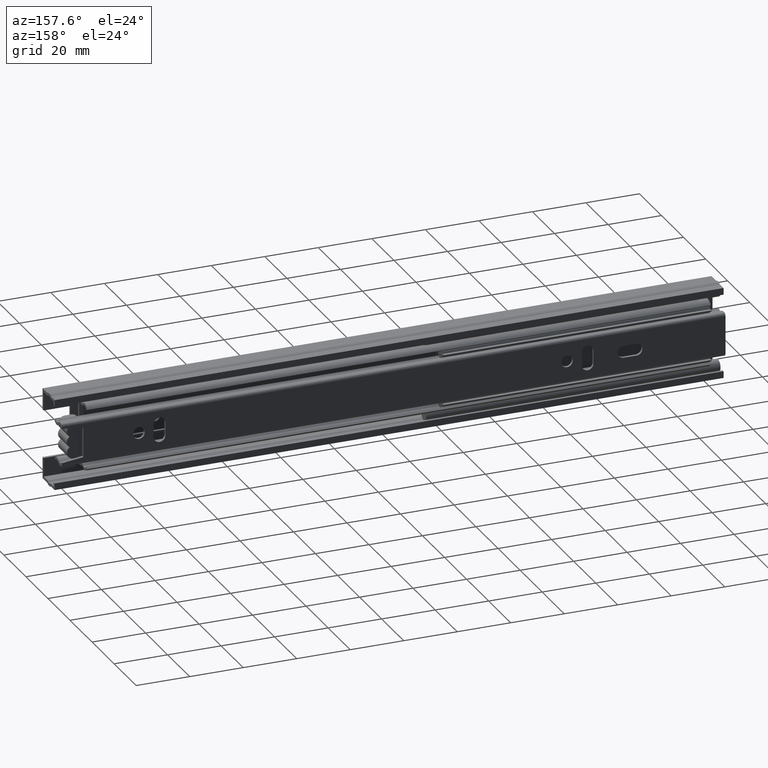
[diagram: clean part render]
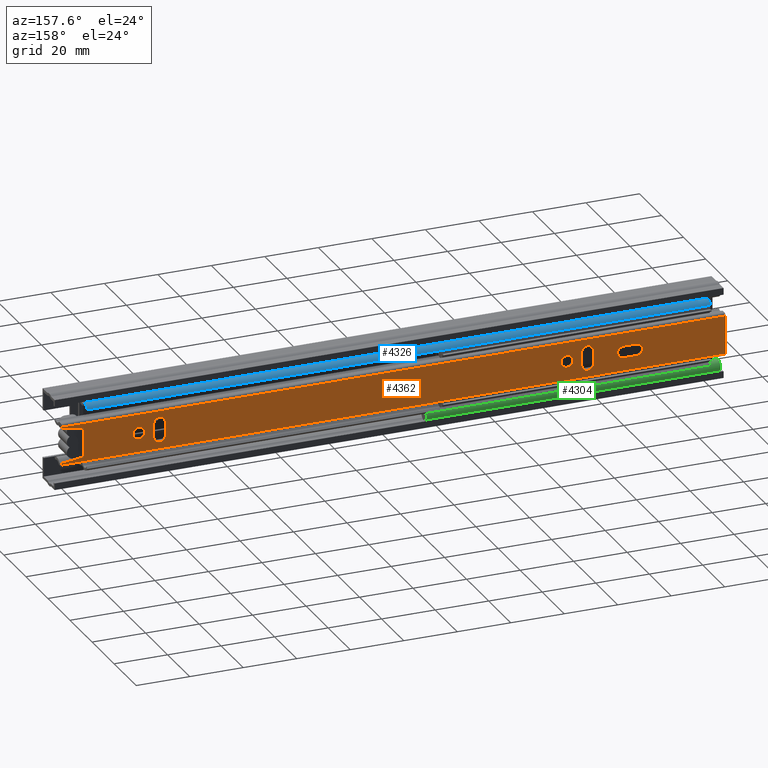
[diagram: same view with three faces highlighted in distinct colors, each labeled with its STEP entity id]
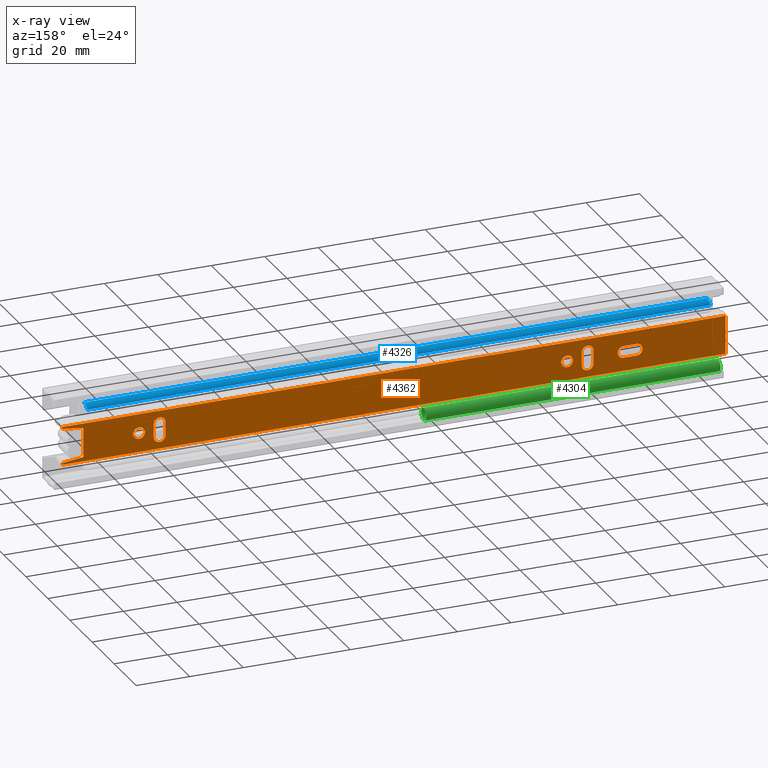
[diagram: x-ray of the same camera — body ghosted, the three highlighted faces saturated]
A machine part, auxiliary view with three faces highlighted in distinct colors.
The next image is the same camera in x-ray (body ghosted, the three faces saturated) — at least one of them is partly hidden behind the body in this view.
Their STEP definitions:

[orange] entity #4362 — the highlighted planar face has unit normal (-0, 1, -0).
#176=FACE_BOUND('',#621,.T.);
#177=FACE_BOUND('',#622,.T.);
#178=FACE_BOUND('',#623,.T.);
#179=FACE_BOUND('',#624,.T.);
#180=FACE_BOUND('',#625,.T.);
#356=FACE_OUTER_BOUND('',#620,.T.);
#620=EDGE_LOOP('',(#3748,#3749,#3750,#3751,#3752,#3753,#3754,#3755));
#621=EDGE_LOOP('',(#3756,#3757,#3758,#3759));
#622=EDGE_LOOP('',(#3760,#3761,#3762,#3763));
#623=EDGE_LOOP('',(#3764));
#624=EDGE_LOOP('',(#3765));
#625=EDGE_LOOP('',(#3766,#3767,#3768,#3769));
#997=LINE('',#6951,#1455);
#1002=LINE('',#6963,#1460);
#1014=LINE('',#7010,#1472);
#1025=LINE('',#7039,#1483);
#1032=LINE('',#7061,#1490);
#1035=LINE('',#7067,#1493);
#1038=LINE('',#7071,#1496);
#1039=LINE('',#7073,#1497);
#1040=LINE('',#7078,#1498);
#1041=LINE('',#7081,#1499);
#1042=LINE('',#7086,#1500);
#1043=LINE('',#7089,#1501);
#1044=LINE('',#7098,#1502);
#1045=LINE('',#7101,#1503);
#1455=VECTOR('',#5681,248.);
#1460=VECTOR('',#5692,14.3000000000001);
#1472=VECTOR('',#5730,248.);
#1483=VECTOR('',#5759,0.650000000000026);
#1490=VECTOR('',#5780,8.06225774829856);
#1493=VECTOR('',#5785,11.);
#1496=VECTOR('',#5790,8.06225774829856);
#1497=VECTOR('',#5793,0.650000000000024);
#1498=VECTOR('',#5796,4.89999999999999);
#1499=VECTOR('',#5799,4.89999999999999);
#1500=VECTOR('',#5802,4.9);
#1501=VECTOR('',#5805,4.9);
#1502=VECTOR('',#5812,4.9);
#1503=VECTOR('',#5815,4.9);
#1740=CIRCLE('',#4733,2.2);
#1741=CIRCLE('',#4734,2.2);
#1742=CIRCLE('',#4735,2.2);
#1743=CIRCLE('',#4736,2.2);
#1744=CIRCLE('',#4737,2.2);
#1745=CIRCLE('',#4738,2.2);
#1746=CIRCLE('',#4739,2.2);
#1747=CIRCLE('',#4740,2.2);
#2056=VERTEX_POINT('',#6948);
#2057=VERTEX_POINT('',#6950);
#2061=VERTEX_POINT('',#6962);
#2082=VERTEX_POINT('',#7006);
#2092=VERTEX_POINT('',#7037);
#2099=VERTEX_POINT('',#7058);
#2100=VERTEX_POINT('',#7060);
#2102=VERTEX_POINT('',#7066);
#2103=VERTEX_POINT('',#7074);
#2104=VERTEX_POINT('',#7075);
#2105=VERTEX_POINT('',#7077);
#2106=VERTEX_POINT('',#7079);
#2107=VERTEX_POINT('',#7082);
#2108=VERTEX_POINT('',#7083);
#2109=VERTEX_POINT('',#7085);
#2110=VERTEX_POINT('',#7087);
#2111=VERTEX_POINT('',#7090);
#2112=VERTEX_POINT('',#7092);
#2113=VERTEX_POINT('',#7094);
#2114=VERTEX_POINT('',#7095);
#2115=VERTEX_POINT('',#7097);
#2116=VERTEX_POINT('',#7099);
#2614=EDGE_CURVE('',#2056,#2057,#997,.T.);
#2620=EDGE_CURVE('',#2057,#2061,#1002,.T.);
#2644=EDGE_CURVE('',#2061,#2082,#1014,.T.);
#2659=EDGE_CURVE('',#2092,#2056,#1025,.T.);
#2669=EDGE_CURVE('',#2100,#2099,#1032,.T.);
#2672=EDGE_CURVE('',#2102,#2100,#1035,.T.);
#2675=EDGE_CURVE('',#2092,#2102,#1038,.T.);
#2676=EDGE_CURVE('',#2082,#2099,#1039,.T.);
#2677=EDGE_CURVE('',#2103,#2104,#1740,.T.);
#2678=EDGE_CURVE('',#2104,#2105,#1040,.T.);
#2679=EDGE_CURVE('',#2105,#2106,#1741,.T.);
#2680=EDGE_CURVE('',#2106,#2103,#1041,.T.);
#2681=EDGE_CURVE('',#2107,#2108,#1742,.T.);
#2682=EDGE_CURVE('',#2108,#2109,#1042,.T.);
#2683=EDGE_CURVE('',#2109,#2110,#1743,.T.);
#2684=EDGE_CURVE('',#2110,#2107,#1043,.T.);
#2685=EDGE_CURVE('',#2111,#2111,#1744,.T.);
#2686=EDGE_CURVE('',#2112,#2112,#1745,.T.);
#2687=EDGE_CURVE('',#2113,#2114,#1746,.T.);
#2688=EDGE_CURVE('',#2114,#2115,#1044,.T.);
#2689=EDGE_CURVE('',#2115,#2116,#1747,.T.);
#2690=EDGE_CURVE('',#2116,#2113,#1045,.T.);
#3748=ORIENTED_EDGE('',*,*,#2614,.F.);
#3749=ORIENTED_EDGE('',*,*,#2659,.F.);
#3750=ORIENTED_EDGE('',*,*,#2675,.T.);
#3751=ORIENTED_EDGE('',*,*,#2672,.T.);
#3752=ORIENTED_EDGE('',*,*,#2669,.T.);
#3753=ORIENTED_EDGE('',*,*,#2676,.F.);
#3754=ORIENTED_EDGE('',*,*,#2644,.F.);
#3755=ORIENTED_EDGE('',*,*,#2620,.F.);
#3756=ORIENTED_EDGE('',*,*,#2677,.T.);
#3757=ORIENTED_EDGE('',*,*,#2678,.T.);
#3758=ORIENTED_EDGE('',*,*,#2679,.T.);
#3759=ORIENTED_EDGE('',*,*,#2680,.T.);
#3760=ORIENTED_EDGE('',*,*,#2681,.T.);
#3761=ORIENTED_EDGE('',*,*,#2682,.T.);
#3762=ORIENTED_EDGE('',*,*,#2683,.T.);
#3763=ORIENTED_EDGE('',*,*,#2684,.T.);
#3764=ORIENTED_EDGE('',*,*,#2685,.T.);
#3765=ORIENTED_EDGE('',*,*,#2686,.T.);
#3766=ORIENTED_EDGE('',*,*,#2687,.T.);
#3767=ORIENTED_EDGE('',*,*,#2688,.T.);
#3768=ORIENTED_EDGE('',*,*,#2689,.T.);
#3769=ORIENTED_EDGE('',*,*,#2690,.T.);
#4156=PLANE('',#4732);
#4362=ADVANCED_FACE('',(#356,#176,#177,#178,#179,#180),#4156,.T.);
#4732=AXIS2_PLACEMENT_3D('',#7072,#5791,#5792);
#4733=AXIS2_PLACEMENT_3D('',#7076,#5794,#5795);
#4734=AXIS2_PLACEMENT_3D('',#7080,#5797,#5798);
#4735=AXIS2_PLACEMENT_3D('',#7084,#5800,#5801);
#4736=AXIS2_PLACEMENT_3D('',#7088,#5803,#5804);
#4737=AXIS2_PLACEMENT_3D('',#7091,#5806,#5807);
#4738=AXIS2_PLACEMENT_3D('',#7093,#5808,#5809);
#4739=AXIS2_PLACEMENT_3D('',#7096,#5810,#5811);
#4740=AXIS2_PLACEMENT_3D('',#7100,#5813,#5814);
#5681=DIRECTION('',(-1.,0.,0.));
#5692=DIRECTION('',(0.,0.,-1.));
#5730=DIRECTION('',(1.,0.,0.));
#5759=DIRECTION('',(0.,0.,1.));
#5780=DIRECTION('',(0.992277876713668,0.,-0.124034734589208));
#5785=DIRECTION('',(0.,0.,-1.));
#5790=DIRECTION('',(-0.992277876713668,0.,-0.124034734589208));
#5791=DIRECTION('center_axis',(0.,1.,0.));
#5792=DIRECTION('ref_axis',(0.,0.,1.));
#5793=DIRECTION('',(0.,0.,1.));
#5794=DIRECTION('center_axis',(0.,-1.,0.));
#5795=DIRECTION('ref_axis',(-1.,0.,7.56970244062623E-15));
#5796=DIRECTION('',(-7.25043607918471E-15,0.,-1.));
#5797=DIRECTION('center_axis',(0.,-1.,0.));
#5798=DIRECTION('ref_axis',(1.,0.,-8.07434927000092E-15));
#5799=DIRECTION('',(7.25043607918471E-15,0.,1.));
#5800=DIRECTION('center_axis',(0.,-1.,0.));
#5801=DIRECTION('ref_axis',(0.,0.,1.));
#5802=DIRECTION('',(1.,0.,0.));
#5803=DIRECTION('center_axis',(0.,-1.,0.));
#5804=DIRECTION('ref_axis',(0.,0.,-1.));
#5805=DIRECTION('',(-1.,0.,0.));
#5806=DIRECTION('center_axis',(0.,-1.,0.));
#5807=DIRECTION('ref_axis',(-1.,0.,0.));
#5808=DIRECTION('center_axis',(0.,-1.,0.));
#5809=DIRECTION('ref_axis',(-1.,0.,0.));
#5810=DIRECTION('center_axis',(0.,-1.,0.));
#5811=DIRECTION('ref_axis',(-1.,0.,0.));
#5812=DIRECTION('',(0.,0.,-1.));
#5813=DIRECTION('center_axis',(0.,-1.,0.));
#5814=DIRECTION('ref_axis',(1.,0.,0.));
#5815=DIRECTION('',(1.81260901979617E-15,0.,1.));
#6948=CARTESIAN_POINT('',(124.,12.7,7.15000000000003));
#6950=CARTESIAN_POINT('',(-124.,12.7,7.15000000000003));
#6951=CARTESIAN_POINT('',(0.,12.7,7.15000000000003));
#6962=CARTESIAN_POINT('',(-124.,12.7,-7.15000000000003));
#6963=CARTESIAN_POINT('',(-124.,12.7,0.));
#7006=CARTESIAN_POINT('',(124.,12.7,-7.15000000000003));
#7010=CARTESIAN_POINT('',(0.,12.7,-7.15000000000003));
#7037=CARTESIAN_POINT('',(124.,12.7,6.5));
#7039=CARTESIAN_POINT('',(124.,12.7,-8.15));
#7058=CARTESIAN_POINT('',(124.,12.7,-6.5));
#7060=CARTESIAN_POINT('',(116.,12.7,-5.5));
#7061=CARTESIAN_POINT('',(58.5538461538462,12.7,1.68076923076923));
#7066=CARTESIAN_POINT('',(116.,12.7,5.5));
#7067=CARTESIAN_POINT('',(116.,12.7,2.75));
#7071=CARTESIAN_POINT('',(62.5538461538462,12.7,-1.18076923076922));
#7072=CARTESIAN_POINT('Origin',(0.,12.7,0.));
#7073=CARTESIAN_POINT('',(124.,12.7,-8.15));
#7074=CARTESIAN_POINT('',(89.7000000000001,12.7,2.44999999999993));
#7075=CARTESIAN_POINT('',(85.3,12.7,2.44999999999997));
#7076=CARTESIAN_POINT('Origin',(87.5,12.7,2.44999999999995));
#7077=CARTESIAN_POINT('',(85.3,12.7,-2.45000000000003));
#7078=CARTESIAN_POINT('',(85.3,12.7,1.22499999999967));
#7079=CARTESIAN_POINT('',(89.7,12.7,-2.45000000000006));
#7080=CARTESIAN_POINT('Origin',(87.5,12.7,-2.45000000000004));
#7081=CARTESIAN_POINT('',(89.7000000000001,12.7,-1.22500000000035));
#7082=CARTESIAN_POINT('',(-90.8,12.7,2.2));
#7083=CARTESIAN_POINT('',(-90.8,12.7,-2.2));
#7084=CARTESIAN_POINT('Origin',(-90.8,12.7,0.));
#7085=CARTESIAN_POINT('',(-85.9,12.7,-2.2));
#7086=CARTESIAN_POINT('',(-45.4,12.7,-2.2));
#7087=CARTESIAN_POINT('',(-85.9,12.7,2.2));
#7088=CARTESIAN_POINT('Origin',(-85.9,12.7,0.));
#7089=CARTESIAN_POINT('',(-42.95,12.7,2.2));
#7090=CARTESIAN_POINT('',(-62.6,12.7,8.40800728812739E-16));
#7091=CARTESIAN_POINT('Origin',(-64.8,12.7,1.11022302462516E-15));
#7092=CARTESIAN_POINT('',(97.4000000000001,12.7,-2.69422295812418E-16));
#7093=CARTESIAN_POINT('Origin',(95.2,12.7,0.));
#7094=CARTESIAN_POINT('',(-70.3,12.7,2.45));
#7095=CARTESIAN_POINT('',(-74.7,12.7,2.45));
#7096=CARTESIAN_POINT('Origin',(-72.5,12.7,2.45));
#7097=CARTESIAN_POINT('',(-74.7,12.7,-2.45));
#7098=CARTESIAN_POINT('',(-74.7,12.7,1.225));
#7099=CARTESIAN_POINT('',(-70.3,12.7,-2.45));
#7100=CARTESIAN_POINT('Origin',(-72.5,12.7,-2.45));
#7101=CARTESIAN_POINT('',(-70.3,12.7,-1.22499999999994));

[blue] entity #4326 — the highlighted cylindrical surface (edge-blend (fillet) strip) has radius 3.25 mm, axis along (1, -0, 0).
#104=CYLINDRICAL_SURFACE('',#4667,3.25);
#320=FACE_OUTER_BOUND('',#578,.T.);
#578=EDGE_LOOP('',(#3533,#3534,#3535,#3536));
#964=LINE('',#6865,#1422);
#965=LINE('',#6869,#1423);
#1422=VECTOR('',#5586,233.);
#1423=VECTOR('',#5591,233.);
#1704=CIRCLE('',#4655,3.25);
#1712=CIRCLE('',#4668,3.25);
#2012=VERTEX_POINT('',#6809);
#2013=VERTEX_POINT('',#6811);
#2035=VERTEX_POINT('',#6863);
#2036=VERTEX_POINT('',#6867);
#2546=EDGE_CURVE('',#2012,#2013,#1704,.T.);
#2573=EDGE_CURVE('',#2012,#2035,#964,.T.);
#2574=EDGE_CURVE('',#2036,#2035,#1712,.T.);
#2575=EDGE_CURVE('',#2013,#2036,#965,.T.);
#3533=ORIENTED_EDGE('',*,*,#2573,.T.);
#3534=ORIENTED_EDGE('',*,*,#2574,.F.);
#3535=ORIENTED_EDGE('',*,*,#2575,.F.);
#3536=ORIENTED_EDGE('',*,*,#2546,.F.);
#4326=ADVANCED_FACE('',(#320),#104,.T.);
#4655=AXIS2_PLACEMENT_3D('',#6812,#5543,#5544);
#4667=AXIS2_PLACEMENT_3D('',#6866,#5587,#5588);
#4668=AXIS2_PLACEMENT_3D('',#6868,#5589,#5590);
#5543=DIRECTION('center_axis',(-1.,0.,0.));
#5544=DIRECTION('ref_axis',(0.,0.832619023245218,0.553846153846155));
#5586=DIRECTION('',(1.,0.,0.));
#5587=DIRECTION('center_axis',(1.,0.,0.));
#5588=DIRECTION('ref_axis',(0.,0.832619023245218,0.553846153846155));
#5589=DIRECTION('center_axis',(1.,0.,0.));
#5590=DIRECTION('ref_axis',(0.,0.832619023245218,0.553846153846155));
#5591=DIRECTION('',(1.,0.,0.));
#6809=CARTESIAN_POINT('',(-116.5,7.59203820673923,12.6100583821151));
#6811=CARTESIAN_POINT('',(-116.5,10.806011825547,11.2));
#6812=CARTESIAN_POINT('Origin',(-116.5,8.1,9.39999999999999));
#6863=CARTESIAN_POINT('',(116.5,7.59203820673923,12.6100583821151));
#6865=CARTESIAN_POINT('',(0.,7.59203820673923,12.6100583821151));
#6866=CARTESIAN_POINT('Origin',(0.,8.1,9.39999999999999));
#6867=CARTESIAN_POINT('',(116.5,10.806011825547,11.2));
#6868=CARTESIAN_POINT('Origin',(116.5,8.1,9.39999999999999));
#6869=CARTESIAN_POINT('',(0.,10.806011825547,11.2));

[green] entity #4304 — the highlighted cylindrical surface (bore or boss wall) has radius 2.25 mm, axis along (1, 0, 0).
#95=CYLINDRICAL_SURFACE('',#4620,2.25);
#168=FACE_BOUND('',#555,.T.);
#298=FACE_OUTER_BOUND('',#554,.T.);
#554=EDGE_LOOP('',(#3438));
#555=EDGE_LOOP('',(#3439));
#1687=CIRCLE('',#4619,2.25);
#1688=CIRCLE('',#4621,2.25);
#1979=VERTEX_POINT('',#6713);
#1980=VERTEX_POINT('',#6716);
#2501=EDGE_CURVE('',#1979,#1979,#1687,.T.);
#2502=EDGE_CURVE('',#1980,#1980,#1688,.T.);
#3438=ORIENTED_EDGE('',*,*,#2501,.F.);
#3439=ORIENTED_EDGE('',*,*,#2502,.F.);
#4304=ADVANCED_FACE('',(#298,#168),#95,.T.);
#4619=AXIS2_PLACEMENT_3D('',#6714,#5443,#5444);
#4620=AXIS2_PLACEMENT_3D('',#6715,#5445,#5446);
#4621=AXIS2_PLACEMENT_3D('',#6717,#5447,#5448);
#5443=DIRECTION('center_axis',(-1.,0.,0.));
#5444=DIRECTION('ref_axis',(0.,-1.,0.));
#5445=DIRECTION('center_axis',(1.,0.,0.));
#5446=DIRECTION('ref_axis',(0.,-1.,0.));
#5447=DIRECTION('center_axis',(1.,0.,0.));
#5448=DIRECTION('ref_axis',(0.,-1.,0.));
#6713=CARTESIAN_POINT('',(-55.,8.24999999999999,-14.2));
#6714=CARTESIAN_POINT('Origin',(-55.,5.99999999999999,-14.2));
#6715=CARTESIAN_POINT('Origin',(0.,5.99999999999999,-14.2));
#6716=CARTESIAN_POINT('',(55.,8.24999999999999,-14.2));
#6717=CARTESIAN_POINT('Origin',(55.,5.99999999999999,-14.2));